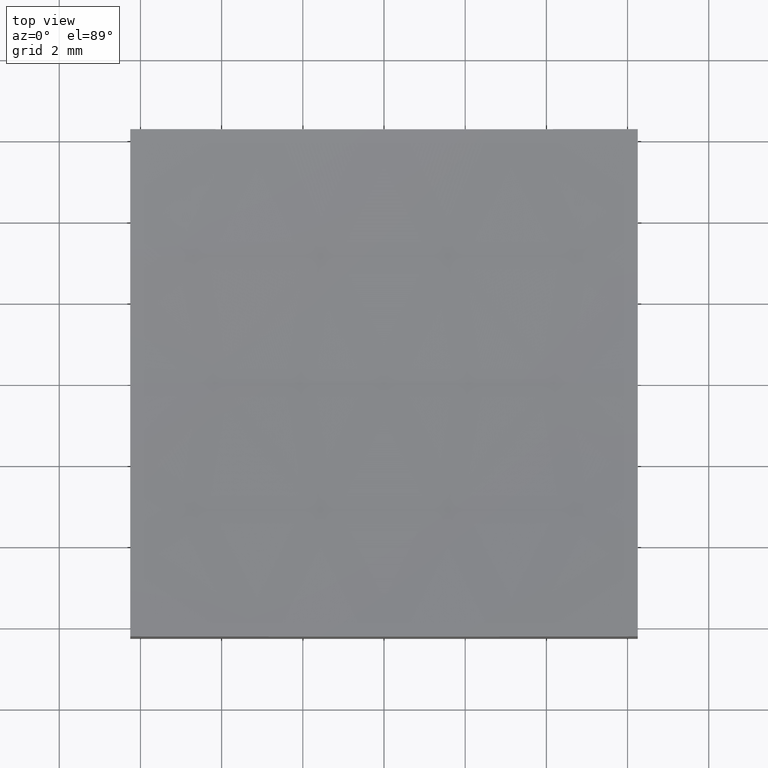
[diagram: clean part render]
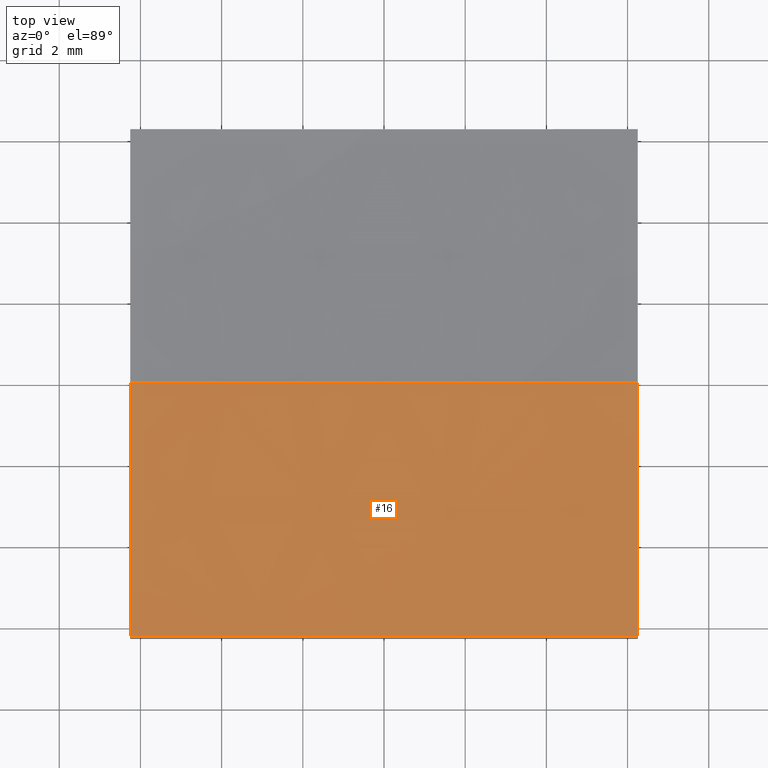
[diagram: same view with one face highlighted and labeled with its STEP entity id]
A machine part, top view. The second image highlights one B-rep face of the part: STEP entity #16.
In plain terms, the highlighted spherical surface has radius 80 mm.
Its self-contained STEP definition (entity closure, byte-faithful):
#1 = DIRECTION ( 'NONE',  ( 1.224646799147353207E-16, 1.000000000000000000, -2.548175834661727704E-32 ) ) ;
#3 = DIRECTION ( 'NONE',  ( 0.0000000000000000000, -1.000000000000000000, -0.0000000000000000000 ) ) ;
#8 = CARTESIAN_POINT ( 'NONE',  ( 6.250000000000000000, -6.250000000000000888, 3.489780531053754409 ) ) ;
#9 = ORIENTED_EDGE ( 'NONE', *, *, #214, .F. ) ;
#10 = AXIS2_PLACEMENT_3D ( 'NONE', #75, #15, #132 ) ;
#14 = EDGE_CURVE ( 'NONE', #23, #124, #179, .T. ) ;
#15 = DIRECTION ( 'NONE',  ( 1.000000000000000000, 0.0000000000000000000, -0.0000000000000000000 ) ) ;
#16 = ADVANCED_FACE ( 'NONE', ( #110 ), #86, .F. ) ;
#23 = VERTEX_POINT ( 'NONE', #8 ) ;
#25 = VERTEX_POINT ( 'NONE', #97 ) ;
#39 = DIRECTION ( 'NONE',  ( 0.0000000000000000000, 0.0000000000000000000, 1.000000000000000000 ) ) ;
#49 = CARTESIAN_POINT ( 'NONE',  ( 6.250000000000000000, 0.0000000000000000000, 83.00000000000000000 ) ) ;
#50 = VERTEX_POINT ( 'NONE', #181 ) ;
#52 = DIRECTION ( 'NONE',  ( 0.0000000000000000000, 1.000000000000000000, 0.0000000000000000000 ) ) ;
#58 = CARTESIAN_POINT ( 'NONE',  ( 1.016456843292302992E-14, 0.0000000000000000000, 83.00000000000000000 ) ) ;
#66 = CIRCLE ( 'NONE', #10, 79.75548570474634857 ) ;
#70 = DIRECTION ( 'NONE',  ( 0.0000000000000000000, 1.000000000000000000, 0.0000000000000000000 ) ) ;
#71 = AXIS2_PLACEMENT_3D ( 'NONE', #49, #128, #199 ) ;
#75 = CARTESIAN_POINT ( 'NONE',  ( -6.250000000000000000, 0.0000000000000000000, 83.00000000000000000 ) ) ;
#78 = DIRECTION ( 'NONE',  ( 0.0000000000000000000, 0.0000000000000000000, -1.000000000000000000 ) ) ;
#82 = ORIENTED_EDGE ( 'NONE', *, *, #101, .F. ) ;
#84 = ORIENTED_EDGE ( 'NONE', *, *, #14, .T. ) ;
#86 = SPHERICAL_SURFACE ( 'NONE', #198, 79.99999999999998579 ) ;
#96 = CIRCLE ( 'NONE', #127, 79.99999999999998579 ) ;
#97 = CARTESIAN_POINT ( 'NONE',  ( -6.250000000000000000, 7.654042494670950704E-16, 3.244514295253658531 ) ) ;
#101 = EDGE_CURVE ( 'NONE', #50, #25, #66, .T. ) ;
#106 = DIRECTION ( 'NONE',  ( -1.000000000000000000, 1.224646799147353207E-16, 0.0000000000000000000 ) ) ;
#110 = FACE_OUTER_BOUND ( 'NONE', #200, .T. ) ;
#112 = EDGE_CURVE ( 'NONE', #23, #50, #137, .T. ) ;
#124 = VERTEX_POINT ( 'NONE', #165 ) ;
#127 = AXIS2_PLACEMENT_3D ( 'NONE', #58, #1, #106 ) ;
#128 = DIRECTION ( 'NONE',  ( 1.000000000000000000, 0.0000000000000000000, -0.0000000000000000000 ) ) ;
#132 = DIRECTION ( 'NONE',  ( 0.0000000000000000000, 0.0000000000000000000, -1.000000000000000000 ) ) ;
#134 = DIRECTION ( 'NONE',  ( 1.000000000000000000, 0.0000000000000000000, -1.734723475976807341E-16 ) ) ;
#137 = CIRCLE ( 'NONE', #169, 79.75548570474634857 ) ;
#141 = VERTEX_POINT ( 'NONE', #204 ) ;
#159 = ORIENTED_EDGE ( 'NONE', *, *, #244, .T. ) ;
#161 = ORIENTED_EDGE ( 'NONE', *, *, #112, .F. ) ;
#165 = CARTESIAN_POINT ( 'NONE',  ( 6.250000000000000000, 0.0000000000000000000, 3.244514295253658531 ) ) ;
#167 = CARTESIAN_POINT ( 'NONE',  ( 1.016456843292302992E-14, 0.0000000000000000000, 83.00000000000000000 ) ) ;
#169 = AXIS2_PLACEMENT_3D ( 'NONE', #172, #52, #39 ) ;
#172 = CARTESIAN_POINT ( 'NONE',  ( 1.016456843292302992E-14, -6.250000000000000888, 83.00000000000000000 ) ) ;
#179 = CIRCLE ( 'NONE', #71, 79.75548570474634857 ) ;
#181 = CARTESIAN_POINT ( 'NONE',  ( -6.250000000000000000, -6.250000000000000888, 3.489780531053754409 ) ) ;
#198 = AXIS2_PLACEMENT_3D ( 'NONE', #167, #70, #134 ) ;
#199 = DIRECTION ( 'NONE',  ( 0.0000000000000000000, 0.0000000000000000000, -1.000000000000000000 ) ) ;
#200 = EDGE_LOOP ( 'NONE', ( #9, #159, #82, #161, #84 ) ) ;
#204 = CARTESIAN_POINT ( 'NONE',  ( -1.582792158443177910E-15, 0.0000000000000000000, 3.000000000000016431 ) ) ;
#206 = CIRCLE ( 'NONE', #210, 79.99999999999998579 ) ;
#210 = AXIS2_PLACEMENT_3D ( 'NONE', #231, #3, #78 ) ;
#214 = EDGE_CURVE ( 'NONE', #141, #124, #206, .T. ) ;
#231 = CARTESIAN_POINT ( 'NONE',  ( 1.016456843292302992E-14, 0.0000000000000000000, 83.00000000000000000 ) ) ;
#244 = EDGE_CURVE ( 'NONE', #141, #25, #96, .T. ) ;